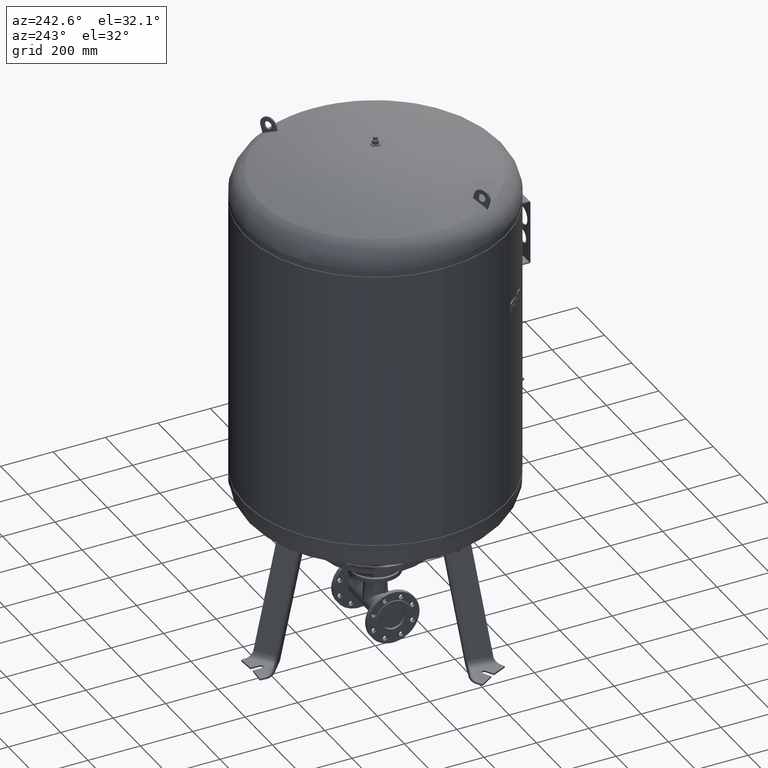
[diagram: clean part render]
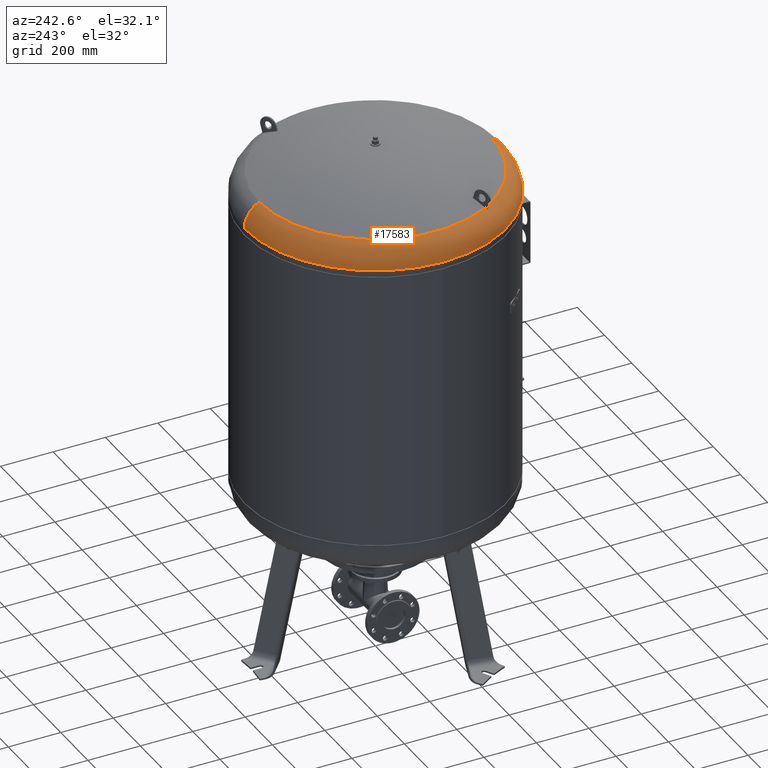
[diagram: same view with one face highlighted and labeled with its STEP entity id]
A machine part, auxiliary view. The second image highlights one B-rep face of the part: STEP entity #17583.
In plain terms, the highlighted toroidal blend (fillet) surface has major radius 399.4 mm and minor (blend) radius 100.6 mm.
Its self-contained STEP definition (entity closure, byte-faithful):
#17124=CARTESIAN_POINT('',(-500.0,2.569315E-014,1775.544644927280400));
#17125=VERTEX_POINT('',#17124);
#17132=CARTESIAN_POINT('',(3.753887E-014,499.999999999999940,1775.544644927280400));
#17133=VERTEX_POINT('',#17132);
#17134=CARTESIAN_POINT('',(2.260647E-015,-3.553717E-014,1775.544644927280400));
#17135=DIRECTION('',(0.0,0.0,-1.0));
#17136=DIRECTION('',(1.0,0.0,0.0));
#17137=AXIS2_PLACEMENT_3D('',#17134,#17135,#17136);
#17138=CIRCLE('',#17137,500.0);
#17139=EDGE_CURVE('',#17125,#17133,#17138,.T.);
#17219=CARTESIAN_POINT('',(-2.369145E-014,-500.000000000000060,1775.544644927280400));
#17220=VERTEX_POINT('',#17219);
#17221=CARTESIAN_POINT('',(-2.474646E-014,-443.777777777777600,1865.827383252533800));
#17222=VERTEX_POINT('',#17221);
#17223=CARTESIAN_POINT('',(-2.369145E-014,-399.399999999999980,1775.544644927280400));
#17224=DIRECTION('',(-1.0,0.0,0.0));
#17225=DIRECTION('',(0.0,-1.0,0.0));
#17226=AXIS2_PLACEMENT_3D('',#17223,#17224,#17225);
#17227=CIRCLE('',#17226,100.600000000000010);
#17228=EDGE_CURVE('',#17220,#17222,#17227,.T.);
#17238=CARTESIAN_POINT('',(2.959885E-014,443.777777777777600,1865.827383252533800));
#17239=VERTEX_POINT('',#17238);
#17240=CARTESIAN_POINT('',(2.521933E-014,399.399999999999860,1775.544644927280400));
#17241=DIRECTION('',(1.0,0.0,0.0));
#17242=DIRECTION('',(0.0,1.0,0.0));
#17243=AXIS2_PLACEMENT_3D('',#17240,#17241,#17242);
#17244=CIRCLE('',#17243,100.600000000000010);
#17245=EDGE_CURVE('',#17133,#17239,#17244,.T.);
#17351=CARTESIAN_POINT('',(-382.814047410493060,-224.481894937162560,1865.827383252533800));
#17352=VERTEX_POINT('',#17351);
#17353=CARTESIAN_POINT('',(-389.830975236114630,-228.533120106169180,1861.371241859355700));
#17354=VERTEX_POINT('',#17353);
#17355=CARTESIAN_POINT('',(-382.814047410493060,-224.481894937162560,1865.827383252533800));
#17356=CARTESIAN_POINT('',(-383.639352309694170,-224.958384942879830,1865.358964044102800));
#17357=CARTESIAN_POINT('',(-384.465875380145410,-225.435578260096290,1864.871089830497800));
#17358=CARTESIAN_POINT('',(-386.558700313612230,-226.643871298800120,1863.585884909508400));
#17359=CARTESIAN_POINT('',(-387.823023543382530,-227.373828655850640,1862.762865036489300));
#17360=CARTESIAN_POINT('',(-389.327412684914410,-228.242388131680000,1861.724754307438600));
#17361=CARTESIAN_POINT('',(-389.579482540164630,-228.387920730463240,1861.548806910300500));
#17362=CARTESIAN_POINT('',(-389.830975236114630,-228.533120106169180,1861.371241859355700));
#17363=B_SPLINE_CURVE_WITH_KNOTS('',3,(#17355,#17356,#17357,#17358,#17359,#17360,#17361,#17362),.UNSPECIFIED.,.F.,.U.,(4,2,2,4),(490.490460209288130,493.520523970825020,498.176350640228350,499.115750118992540),.UNSPECIFIED.);
#17364=EDGE_CURVE('',#17352,#17354,#17363,.T.);
#17466=CARTESIAN_POINT('',(-392.830975236114630,-223.336967683462570,1861.371241859355700));
#17467=VERTEX_POINT('',#17466);
#17468=CARTESIAN_POINT('',(-389.830975236114630,-228.533120106169180,1861.371241859355700));
#17469=CARTESIAN_POINT('',(-390.333307968772260,-227.664983484217170,1861.374723691362500));
#17470=CARTESIAN_POINT('',(-390.833741791658670,-226.799162381117950,1861.376448557724200));
#17471=CARTESIAN_POINT('',(-391.332224433285660,-225.935765119128830,1861.376448557724200));
#17472=CARTESIAN_POINT('',(-391.830707074909750,-225.072367857144680,1861.376448557724200));
#17473=CARTESIAN_POINT('',(-392.330313233880300,-224.206068902067500,1861.374723691362300));
#17474=CARTESIAN_POINT('',(-392.830975236114630,-223.336967683462570,1861.371241859355700));
#17475=B_SPLINE_CURVE_WITH_KNOTS('',3,(#17468,#17469,#17470,#17471,#17472,#17473,#17474),.UNSPECIFIED.,.F.,.U.,(4,3,4),(-2.990895849762056,0.0,2.990895849744776),.UNSPECIFIED.);
#17476=EDGE_CURVE('',#17354,#17467,#17475,.T.);
#17501=CARTESIAN_POINT('',(-385.814047410493120,-219.285742514455960,1865.827383252533800));
#17502=VERTEX_POINT('',#17501);
#17503=CARTESIAN_POINT('',(-392.830975236114630,-223.336967683462570,1861.371241859355700));
#17504=CARTESIAN_POINT('',(-392.579482540164690,-223.191768307756660,1861.548806910300300));
#17505=CARTESIAN_POINT('',(-392.327412684914520,-223.046235708973430,1861.724754307438600));
#17506=CARTESIAN_POINT('',(-390.823023543382700,-222.177676233144100,1862.762865036489300));
#17507=CARTESIAN_POINT('',(-389.558700313612460,-221.447718876093570,1863.585884909508400));
#17508=CARTESIAN_POINT('',(-387.465875380145580,-220.239425837389750,1864.871089830497800));
#17509=CARTESIAN_POINT('',(-386.639352309694290,-219.762232520173260,1865.358964044102800));
#17510=CARTESIAN_POINT('',(-385.814047410493120,-219.285742514455960,1865.827383252533800));
#17511=B_SPLINE_CURVE_WITH_KNOTS('',3,(#17503,#17504,#17505,#17506,#17507,#17508,#17509,#17510),.UNSPECIFIED.,.F.,.U.,(4,2,2,4),(96.832424772951825,97.771824251715969,102.427650921119290,105.457714682656370),.UNSPECIFIED.);
#17512=EDGE_CURVE('',#17467,#17502,#17511,.T.);
#17549=CARTESIAN_POINT('',(-2.369145E-014,-3.553717E-014,1775.544644927280400));
#17550=DIRECTION('',(1.168563E-017,-1.836970E-016,-1.0));
#17551=DIRECTION('',(0.0,-1.0,0.0));
#17552=AXIS2_PLACEMENT_3D('',#17549,#17550,#17551);
#17553=TOROIDAL_SURFACE('',#17552,399.399999999999920,100.600000000000010);
#17554=ORIENTED_EDGE('',*,*,#17228,.T.);
#17555=CARTESIAN_POINT('',(1.205637E-015,-1.895250E-014,1865.827383252533800));
#17556=DIRECTION('',(0.0,0.0,-1.0));
#17557=DIRECTION('',(1.0,0.0,0.0));
#17558=AXIS2_PLACEMENT_3D('',#17555,#17556,#17557);
#17559=CIRCLE('',#17558,443.777777777777600);
#17560=EDGE_CURVE('',#17222,#17352,#17559,.T.);
#17561=ORIENTED_EDGE('',*,*,#17560,.T.);
#17562=ORIENTED_EDGE('',*,*,#17364,.T.);
#17563=ORIENTED_EDGE('',*,*,#17476,.T.);
#17564=ORIENTED_EDGE('',*,*,#17512,.T.);
#17565=CARTESIAN_POINT('',(1.205637E-015,-1.895250E-014,1865.827383252533800));
#17566=DIRECTION('',(0.0,0.0,-1.0));
#17567=DIRECTION('',(1.0,0.0,0.0));
#17568=AXIS2_PLACEMENT_3D('',#17565,#17566,#17567);
#17569=CIRCLE('',#17568,443.777777777777600);
#17570=EDGE_CURVE('',#17502,#17239,#17569,.T.);
#17571=ORIENTED_EDGE('',*,*,#17570,.T.);
#17572=ORIENTED_EDGE('',*,*,#17245,.F.);
#17573=ORIENTED_EDGE('',*,*,#17139,.F.);
#17574=CARTESIAN_POINT('',(2.260647E-015,-3.553717E-014,1775.544644927280400));
#17575=DIRECTION('',(0.0,0.0,-1.0));
#17576=DIRECTION('',(1.0,0.0,0.0));
#17577=AXIS2_PLACEMENT_3D('',#17574,#17575,#17576);
#17578=CIRCLE('',#17577,500.0);
#17579=EDGE_CURVE('',#17220,#17125,#17578,.T.);
#17580=ORIENTED_EDGE('',*,*,#17579,.F.);
#17581=EDGE_LOOP('',(#17554,#17561,#17562,#17563,#17564,#17571,#17572,#17573,#17580));
#17582=FACE_OUTER_BOUND('',#17581,.T.);
#17583=ADVANCED_FACE('',(#17582),#17553,.T.);